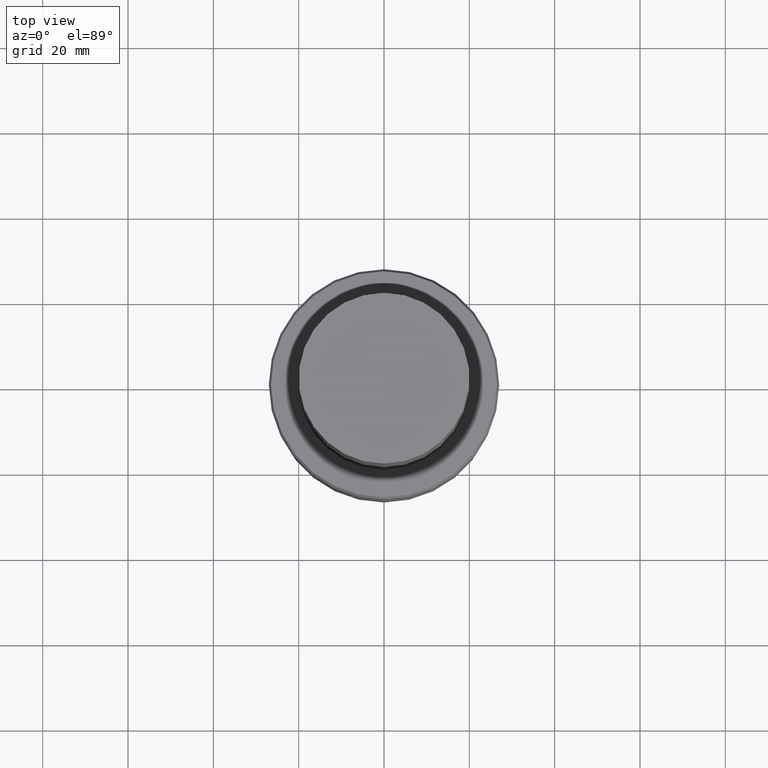
[diagram: clean part render]
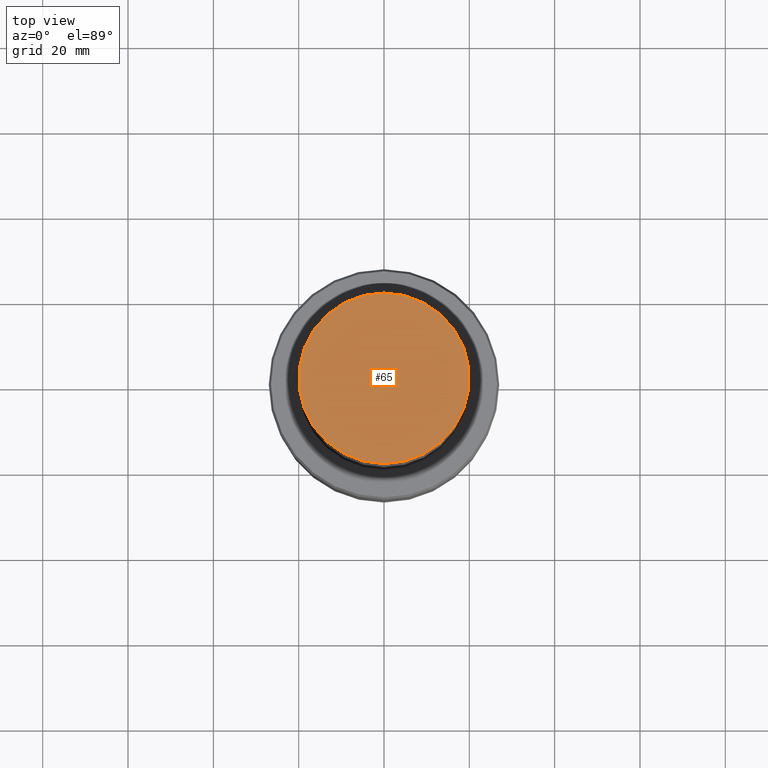
[diagram: same view with one face highlighted and labeled with its STEP entity id]
A machine part, top view. The second image highlights one B-rep face of the part: STEP entity #65.
In plain terms, the highlighted planar face has unit normal (-0, -0, 1).
Its self-contained STEP definition (entity closure, byte-faithful):
#44=EDGE_CURVE('Unnamed[1]',#107,#107,#108,.T.);
#65=ADVANCED_FACE('Unnamed[1]',(#137),#138,.T.);
#107=VERTEX_POINT('',#185);
#108=CIRCLE('',#186,19.9999999999954);
#137=FACE_OUTER_BOUND('',#222,.T.);
#138=PLANE('',#223);
#185=CARTESIAN_POINT('',(-9.3991641834559E-015,19.9999999999954,153.499999999999));
#186=AXIS2_PLACEMENT_3D('',#270,#271,#272);
#222=EDGE_LOOP('',(#301));
#223=AXIS2_PLACEMENT_3D('',#302,#303,#304);
#270=CARTESIAN_POINT('',(-9.3991641834559E-015,-1.87983283669118E-014,153.499999999999));
#271=DIRECTION('',(6.12323399573677E-017,1.22464679914735E-016,-1.0));
#272=DIRECTION('',(-1.23259516440783E-032,1.0,1.22464679914735E-016));
#301=ORIENTED_EDGE('',*,*,#44,.F.);
#302=CARTESIAN_POINT('',(-9.39916418345587E-015,9.99999999999771,153.499999999999));
#303=DIRECTION('',(-6.12323399573677E-017,-4.91499134473728E-014,1.0));
#304=DIRECTION('',(3.0143913618155E-030,-1.0,-4.91499134473728E-014));